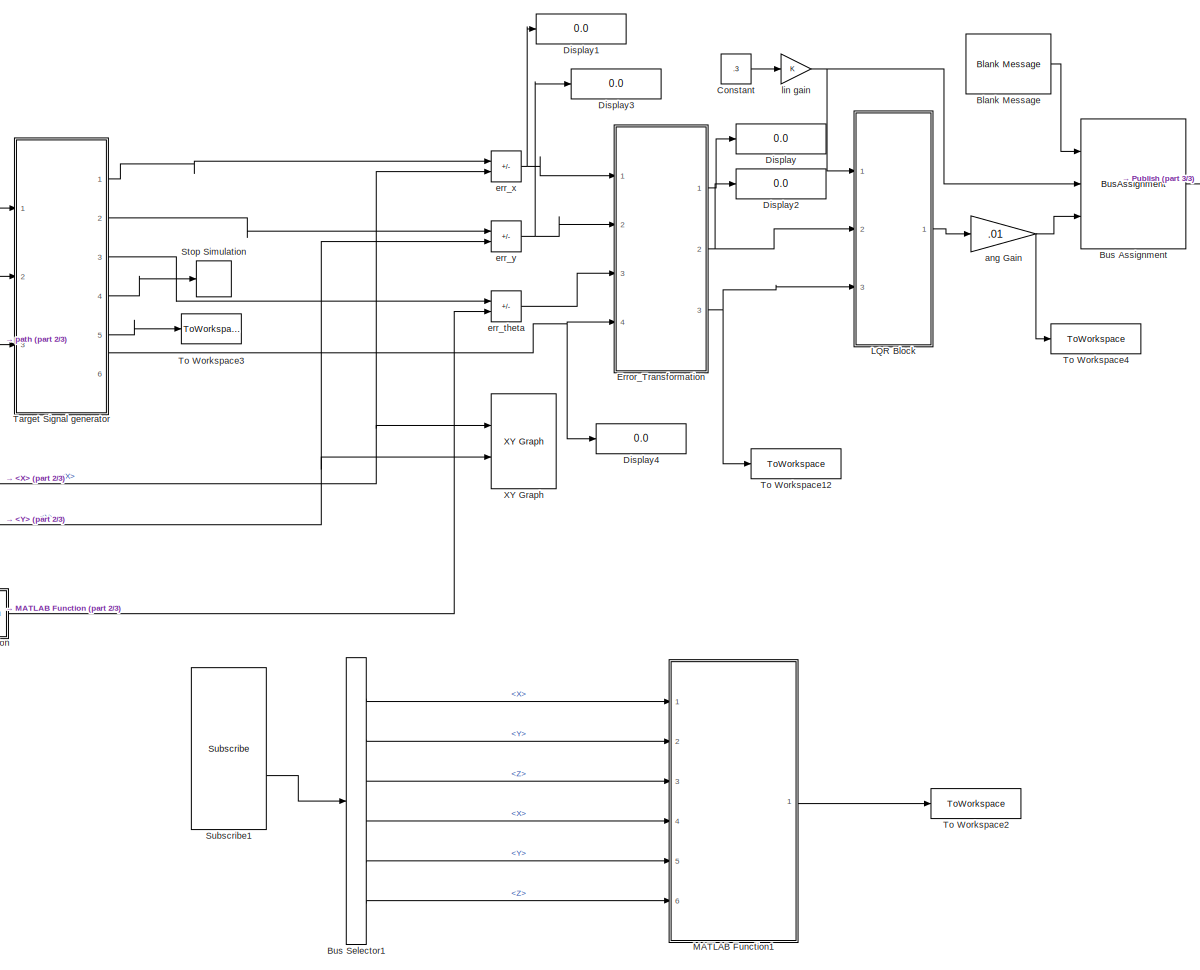
[diagram: root canvas - part 1/3, center side, full height]
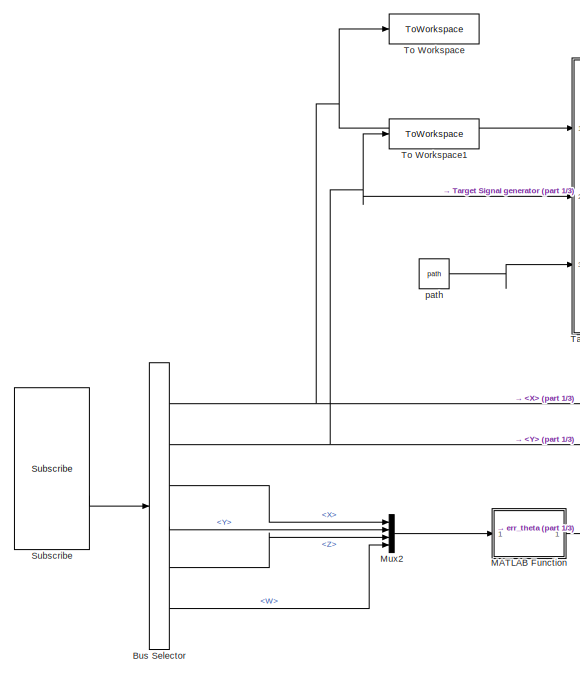
[diagram: root canvas - part 2/3, middle left region]
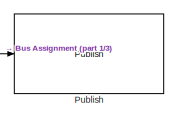
[diagram: root canvas - part 3/3, top right region]
MODEL slx_ee65129ee246
KIND model
CONFIG AbsTol = auto
CONFIG EnableMultiTasking = off
CONFIG FixedStep = auto
CONFIG MaxStep = auto
CONFIG MinStep = auto
CONFIG RelTol = 1e-3
CONFIG SampleTimeConstraint = Unconstrained
CONFIG Solver = VariableStepAuto
CONFIG SolverName = VariableStepAuto
CONFIG StartTime = 0.0
CONFIG StopTime = inf
BLOCK [Reference] Blank Message  REF=robotlib/Blank Message
  Ports = [0, 1]
  SourceBlock = robotlib/Blank Message
  SourceProductBaseCode = RR
  SourceType = ROS Blank Message
BLOCK [BusAssignment] Bus Assignment
  AssignedSignals = Linear.X,Angular.Z
  Ports = [3, 1]
BLOCK [BusSelector] Bus Selector
  OutputSignals = Pose.Pose.Position.X,Pose.Pose.Position.Y,Pose.Pose.Orientation.X,Pose.Pose.Orientation.Y,Pose.Pose.Orientation.Z,Pose.Pose.Orientation.W
  Ports = [1, 6]
BLOCK [BusSelector] Bus Selector1
  OutputSignals = Pose.Pose.Position.X,Pose.Pose.Position.Y,Pose.Pose.Position.Z,Twist.Twist.Linear.X,Twist.Twist.Linear.Y,Twist.Twist.Linear.Z
  Ports = [1, 6]
BLOCK [Constant] Constant
  Value = .3
BLOCK [Display] Display
  Decimation = 1
  Ports = [1]
BLOCK [Display] Display1
  Decimation = 1
  Ports = [1]
BLOCK [Display] Display2
  Decimation = 1
  Ports = [1]
BLOCK [Display] Display3
  Decimation = 1
  Ports = [1]
BLOCK [Display] Display4
  Decimation = 1
  Ports = [1]
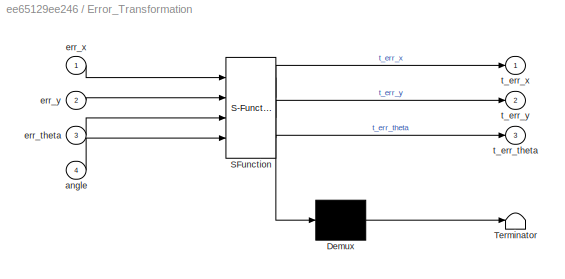
BLOCK [SubSystem] Error_Transformation
  ErrorFcn = Stateflow.Translate.translate
  PermitHierarchicalResolution = ExplicitOnly
  Ports = [4, 3]
  RequestExecContextInheritance = off
  SFBlockType = MATLAB Function
  TreatAsAtomicUnit = on
BLOCK [Demux] Error_Transformation/ Demux 
  Outputs = 1
  Ports = [1, 1]
BLOCK [S-Function] Error_Transformation/ SFunction 
  EnableBusSupport = on
  FunctionName = sf_sfun
  PortCounts = [4 4]
  Ports = [4, 4]
  SFcnIsStateOwnerBlock = off
  SFunctionDeploymentMode = off
  Tag = Stateflow S-Function 2
BLOCK [Terminator] Error_Transformation/ Terminator 
BLOCK [Inport] Error_Transformation/angle
  Port = 4
BLOCK [Inport] Error_Transformation/err_theta
  Port = 3
BLOCK [Inport] Error_Transformation/err_x
BLOCK [Inport] Error_Transformation/err_y
  Port = 2
BLOCK [Outport] Error_Transformation/t_err_theta
  Port = 3
BLOCK [Outport] Error_Transformation/t_err_x
BLOCK [Outport] Error_Transformation/t_err_y
  Port = 2
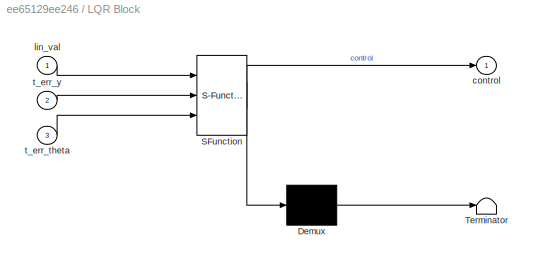
BLOCK [SubSystem] LQR Block
  ErrorFcn = Stateflow.Translate.translate
  PermitHierarchicalResolution = ExplicitOnly
  Ports = [3, 1]
  RequestExecContextInheritance = off
  SFBlockType = MATLAB Function
  TreatAsAtomicUnit = on
BLOCK [Demux] LQR Block/ Demux 
  Outputs = 1
  Ports = [1, 1]
BLOCK [S-Function] LQR Block/ SFunction 
  EnableBusSupport = on
  FunctionName = sf_sfun
  PortCounts = [3 2]
  Ports = [3, 2]
  SFcnIsStateOwnerBlock = off
  SFunctionDeploymentMode = off
  Tag = Stateflow S-Function 1
BLOCK [Terminator] LQR Block/ Terminator 
BLOCK [Outport] LQR Block/control
BLOCK [Inport] LQR Block/lin_val
BLOCK [Inport] LQR Block/t_err_theta
  Port = 3
BLOCK [Inport] LQR Block/t_err_y
  Port = 2
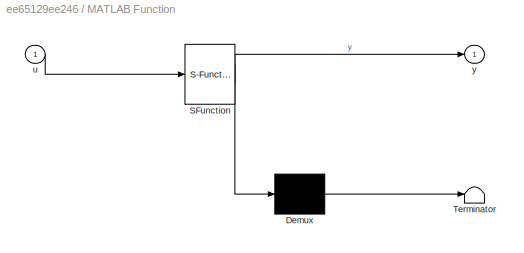
BLOCK [SubSystem] MATLAB Function
  ErrorFcn = Stateflow.Translate.translate
  PermitHierarchicalResolution = ExplicitOnly
  Ports = [1, 1]
  RequestExecContextInheritance = off
  SFBlockType = MATLAB Function
  TreatAsAtomicUnit = on
BLOCK [Demux] MATLAB Function/ Demux 
  Outputs = 1
  Ports = [1, 1]
BLOCK [S-Function] MATLAB Function/ SFunction 
  EnableBusSupport = on
  FunctionName = sf_sfun
  PortCounts = [1 2]
  Ports = [1, 2]
  SFcnIsStateOwnerBlock = off
  SFunctionDeploymentMode = off
  Tag = Stateflow S-Function 5
BLOCK [Terminator] MATLAB Function/ Terminator 
BLOCK [Inport] MATLAB Function/u
BLOCK [Outport] MATLAB Function/y
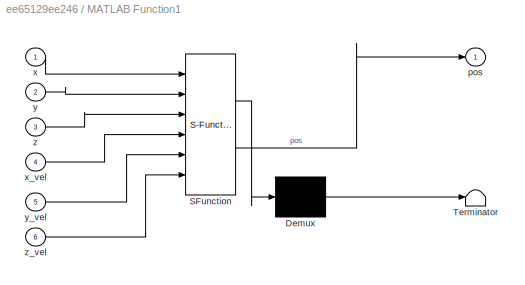
BLOCK [SubSystem] MATLAB Function1
  ErrorFcn = Stateflow.Translate.translate
  PermitHierarchicalResolution = ExplicitOnly
  Ports = [6, 1]
  RequestExecContextInheritance = off
  SFBlockType = MATLAB Function
  TreatAsAtomicUnit = on
BLOCK [Demux] MATLAB Function1/ Demux 
  Outputs = 1
  Ports = [1, 1]
BLOCK [S-Function] MATLAB Function1/ SFunction 
  EnableBusSupport = on
  FunctionName = sf_sfun
  PortCounts = [6 2]
  Ports = [6, 2]
  SFcnIsStateOwnerBlock = off
  SFunctionDeploymentMode = off
  Tag = Stateflow S-Function 4
BLOCK [Terminator] MATLAB Function1/ Terminator 
BLOCK [Outport] MATLAB Function1/pos
BLOCK [Inport] MATLAB Function1/x
BLOCK [Inport] MATLAB Function1/x_vel
  Port = 4
BLOCK [Inport] MATLAB Function1/y
  Port = 2
BLOCK [Inport] MATLAB Function1/y_vel
  Port = 5
BLOCK [Inport] MATLAB Function1/z
  Port = 3
BLOCK [Inport] MATLAB Function1/z_vel
  Port = 6
BLOCK [Mux] Mux2
  DisplayOption = bar
  Ports = [4, 1]
BLOCK [Reference] Publish  REF=robotlib/Publish
  Ports = [1]
  SourceBlock = robotlib/Publish
  SourceProductBaseCode = RR
  SourceType = ROS Publish
BLOCK [Stop] Stop Simulation
BLOCK [Reference] Subscribe  REF=robotlib/Subscribe
  Ports = [0, 2]
  SourceBlock = robotlib/Subscribe
  SourceProductBaseCode = RR
  SourceType = ROS Subscribe
BLOCK [Reference] Subscribe1  REF=robotlib/Subscribe
  Ports = [0, 2]
  SourceBlock = robotlib/Subscribe
  SourceProductBaseCode = RR
  SourceType = ROS Subscribe
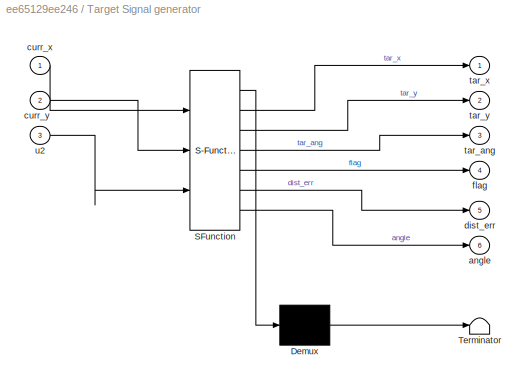
BLOCK [SubSystem] Target Signal generator
  ErrorFcn = Stateflow.Translate.translate
  PermitHierarchicalResolution = ExplicitOnly
  Ports = [3, 6]
  RequestExecContextInheritance = off
  SFBlockType = MATLAB Function
  TreatAsAtomicUnit = on
BLOCK [Demux] Target Signal generator/ Demux 
  Outputs = 1
  Ports = [1, 1]
BLOCK [S-Function] Target Signal generator/ SFunction 
  EnableBusSupport = on
  FunctionName = sf_sfun
  PortCounts = [3 7]
  Ports = [3, 7]
  SFcnIsStateOwnerBlock = off
  SFunctionDeploymentMode = off
  Tag = Stateflow S-Function 3
BLOCK [Terminator] Target Signal generator/ Terminator 
BLOCK [Outport] Target Signal generator/angle
  Port = 6
BLOCK [Inport] Target Signal generator/curr_x
BLOCK [Inport] Target Signal generator/curr_y
  Port = 2
BLOCK [Outport] Target Signal generator/dist_err
  Port = 5
BLOCK [Outport] Target Signal generator/flag
  Port = 4
BLOCK [Outport] Target Signal generator/tar_ang
  Port = 3
BLOCK [Outport] Target Signal generator/tar_x
BLOCK [Outport] Target Signal generator/tar_y
  Port = 2
BLOCK [Inport] Target Signal generator/u2
  Port = 3
BLOCK [ToWorkspace] To Workspace
  FixptAsFi = on
  MaxDataPoints = inf
  Ports = [1]
  SampleTime = -1
  VariableName = x
BLOCK [ToWorkspace] To Workspace1
  FixptAsFi = on
  MaxDataPoints = inf
  Ports = [1]
  SampleTime = -1
  VariableName = y
BLOCK [ToWorkspace] To Workspace12
  FixptAsFi = on
  MaxDataPoints = inf
  Ports = [1]
  SampleTime = -1
  VariableName = orient_err
BLOCK [ToWorkspace] To Workspace2
  FixptAsFi = on
  MaxDataPoints = inf
  Ports = [1]
  SampleTime = -1
  VariableName = gps_pos
BLOCK [ToWorkspace] To Workspace3
  FixptAsFi = on
  MaxDataPoints = inf
  Ports = [1]
  SampleTime = -1
  VariableName = dist_err
BLOCK [ToWorkspace] To Workspace4
  FixptAsFi = on
  MaxDataPoints = inf
  Ports = [1]
  SampleTime = -1
  VariableName = control
BLOCK [Reference] XY Graph  REF=simulink/Sinks/XY Graph
  Ports = [2]
  SourceBlock = simulink/Sinks/XY Graph
  SourceProductBaseCode = SL
  SourceType = XY scope.
BLOCK [Gain] ang Gain
  Gain = .01
BLOCK [Sum] err_theta
  IconShape = rectangular
  Inputs = +-
  Ports = [2, 1]
BLOCK [Sum] err_x
  IconShape = rectangular
  Inputs = +-
  Ports = [2, 1]
BLOCK [Sum] err_y
  IconShape = rectangular
  Inputs = +-
  Ports = [2, 1]
BLOCK [Gain] lin gain
BLOCK [Constant] path
  Value = path
LINE Blank Message:1 -> Bus Assignment:1
LINE Bus Assignment:1 -> Publish:1
LINE Bus Selector1:1 -> MATLAB Function1:1
LINE Bus Selector1:2 -> MATLAB Function1:2
LINE Bus Selector1:3 -> MATLAB Function1:3
LINE Bus Selector1:4 -> MATLAB Function1:4
LINE Bus Selector1:5 -> MATLAB Function1:5
LINE Bus Selector1:6 -> MATLAB Function1:6
NET Bus Selector:1 -> Target Signal generator:1, To Workspace:1, XY Graph:1, err_x:2
NET Bus Selector:2 -> Target Signal generator:2, To Workspace1:1, XY Graph:2, err_y:2
LINE Bus Selector:3 -> Mux2:1
LINE Bus Selector:4 -> Mux2:2
LINE Bus Selector:5 -> Mux2:3
LINE Bus Selector:6 -> Mux2:4
LINE Constant:1 -> lin gain:1
LINE Error_Transformation:1 -> Display:1
NET Error_Transformation:2 -> Display2:1, LQR Block:2
NET Error_Transformation:3 -> LQR Block:3, To Workspace12:1
LINE LQR Block:1 -> ang Gain:1
LINE MATLAB Function1:1 -> To Workspace2:1
LINE MATLAB Function:1 -> err_theta:2
LINE Mux2:1 -> MATLAB Function:1
LINE Subscribe1:2 -> Bus Selector1:1
LINE Subscribe:2 -> Bus Selector:1
LINE Target Signal generator:1 -> err_x:1
LINE Target Signal generator:2 -> err_y:1
LINE Target Signal generator:3 -> err_theta:1
LINE Target Signal generator:4 -> Stop Simulation:1
LINE Target Signal generator:5 -> To Workspace3:1
NET Target Signal generator:6 -> Display4:1, Error_Transformation:4
NET ang Gain:1 -> Bus Assignment:3, To Workspace4:1
LINE err_theta:1 -> Error_Transformation:3
NET err_x:1 -> Display1:1, Error_Transformation:1
NET err_y:1 -> Display3:1, Error_Transformation:2
NET lin gain:1 -> Bus Assignment:2, LQR Block:1
LINE path:1 -> Target Signal generator:3
note: NET lines group one-source signal fan-out (src -> all destinations, sorted); 1:1 wires keep LINE
CHART LQR Block states=1 transitions=1
  STATE_LABEL 'eML_blk_kernel()'
  STATE_LABEL "SCRIPT:\nfunction control = fcn(lin_val,t_err_y,t_err_theta)\n\nl=1.3; %length of vehicle\nv=lin_val;\ndisp(v);\n\nA=[0 -v;0 0];\nB=[0 v/l]';\n\n\nQ=[1100 0;0 1000];\nR=[.001];\n\n%k=lqr(A,B,Q,R);\nk=[-1095.4 1001.1];\n\nu=k*[t_err_y t_err_theta]';\n\ncontrol = u;\n"
CHART Error_Transformation states=1 transitions=1
  STATE_LABEL 'eML_blk_kernel()'
  STATE_LABEL 'SCRIPT:\nfunction [t_err_x,t_err_y,t_err_theta] = fcn(err_x,err_y,err_theta,angle)\n\n% disp("ERROR IN X");\n% disp(err_x);\n% disp("ERROR IN Y");\n% disp(err_y);\n disp("ERROR IN Theta");\n disp(err_theta);\n\nif err_theta > 3.14\n    err_theta=err_theta-2*3.14;\nelseif err_theta<-3.14\n    err_theta=err_theta+2*3.14;\nend     \n\n%theta_r=atan2(err_y,err_x);\ntheta_r=angle;\n% disp("theta_r is");\n% disp(theta_r);...<+428ch>'
CHART Target Signal generator states=1 transitions=1
  STATE_LABEL 'eML_blk_kernel()'
  STATE_LABEL 'SCRIPT:\nfunction [tar_x,tar_y,tar_ang,flag,dist_err,angle] = fcn(curr_x,curr_y,u2)\n\npersistent pathcount;\npersistent pathlength;\npersistent path;\npersistent pathPre;\n\n\nif isempty(pathcount)\n   pathcount=1;\n   pathPre=u2;\n   [pathlength,~]=size(pathPre);  \n   path=[pathPre; pathPre(pathlength,1)+100 pathPre(pathlength,2)+100]; %sim takes multiple iterations to stop after reaching final point, so th...<+714ch>'
CHART MATLAB Function1 states=1 transitions=1
  STATE_LABEL 'eML_blk_kernel()'
  STATE_LABEL 'SCRIPT:\nfunction pos = fcn(x,y,z,x_vel,y_vel,z_vel)\n\n% fs = 1;\n% duration = 1000;\n% numSamples = duration*fs;\n%numSamples = 2;\n\n%refLoc = [42.2825 -71.343 53.0352];\n% refLoc = [1 1 20]; %replace this with current location\n\nrefLoc = [0 0 20];\n\n% truePosition = zeros(numSamples,3); %replace this with current position\n% trueVelocity = zeros(numSamples,3); %replace this with current velocity\n\n%gps = g...<+666ch>'
CHART MATLAB Function states=1 transitions=1
  STATE_LABEL 'eML_blk_kernel()'
  STATE_LABEL 'SCRIPT:\nfunction y = fcn(u)\nquat = [u(1) u(2) u(3) u(4)];\neuler = quat2eul(quat);\nyaw = euler(3);\ny = yaw;\n'
CHART  states=0 transitions=0
CHART  states=0 transitions=0
CHART  states=0 transitions=0
CHART  states=0 transitions=0
CHART  states=0 transitions=0
